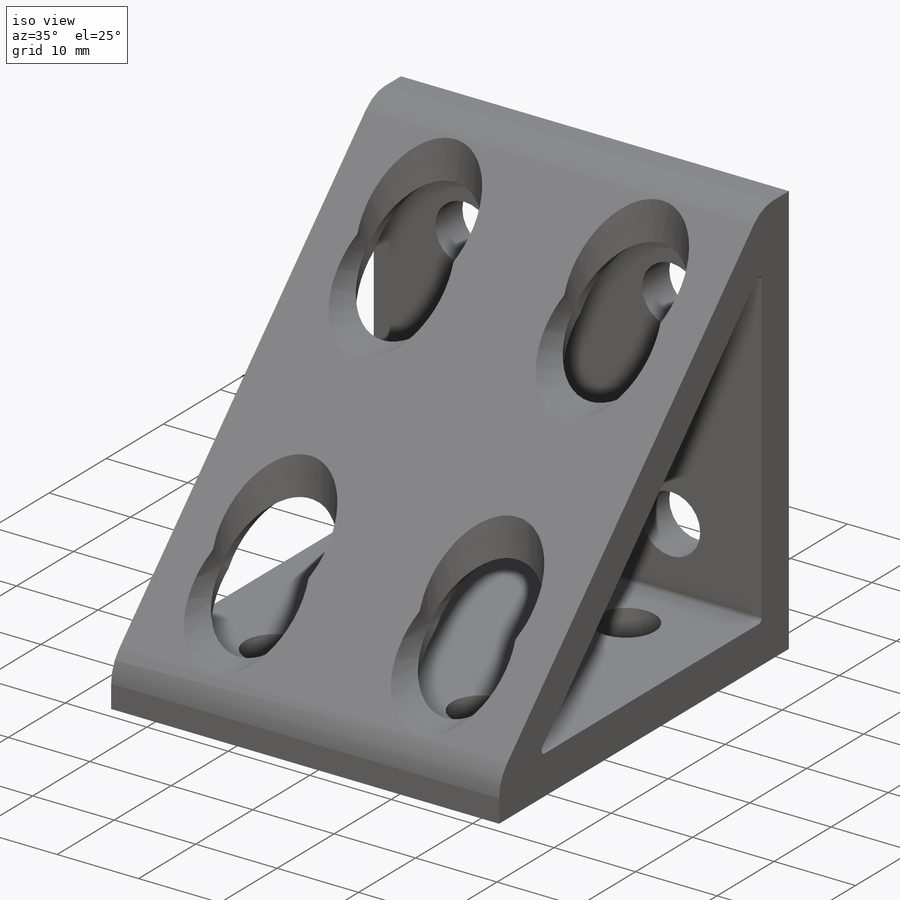
[diagram: iso view]
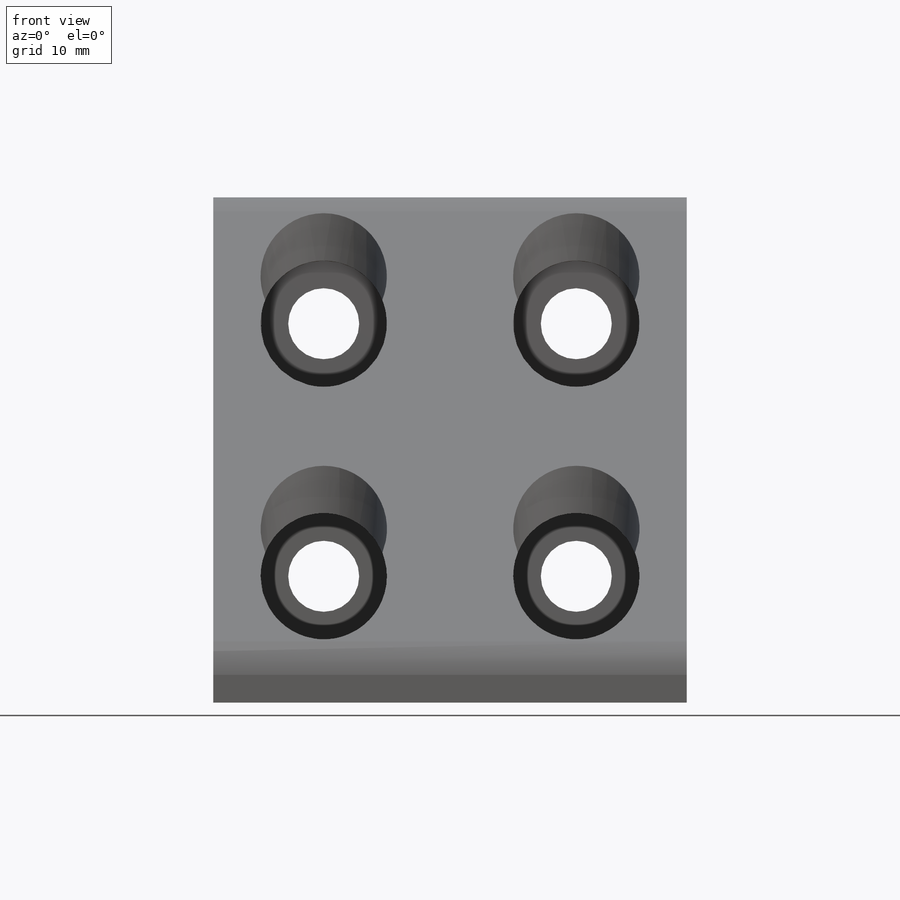
[diagram: front view]
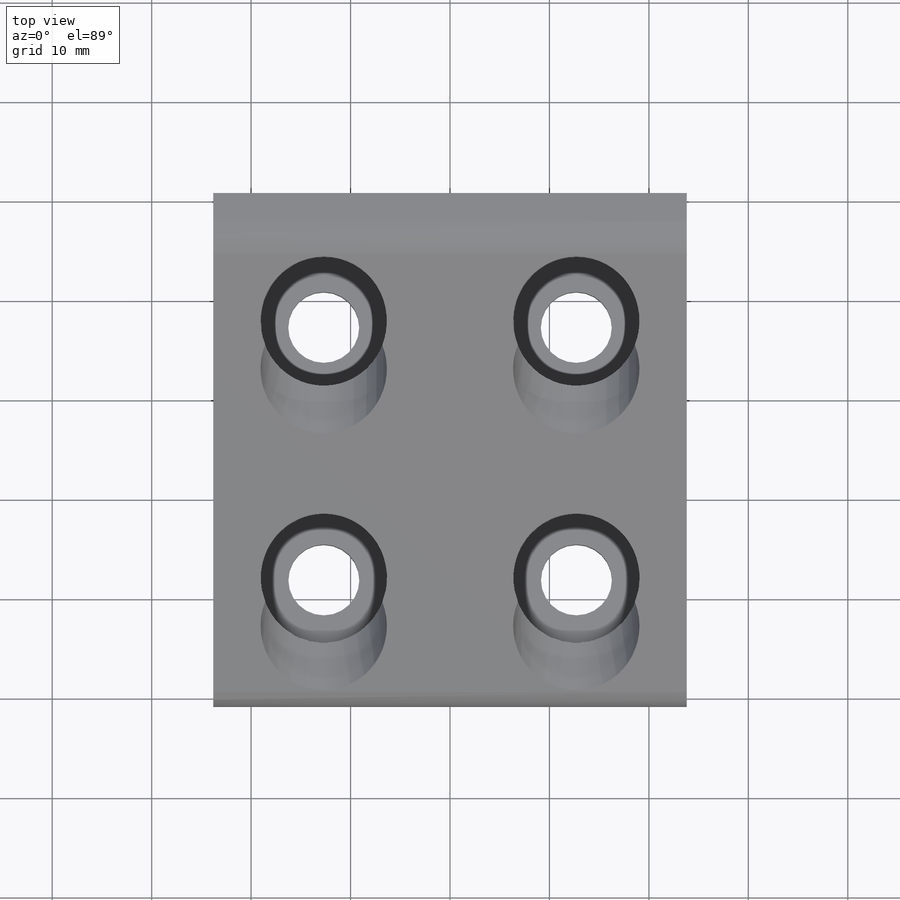
[diagram: top view]
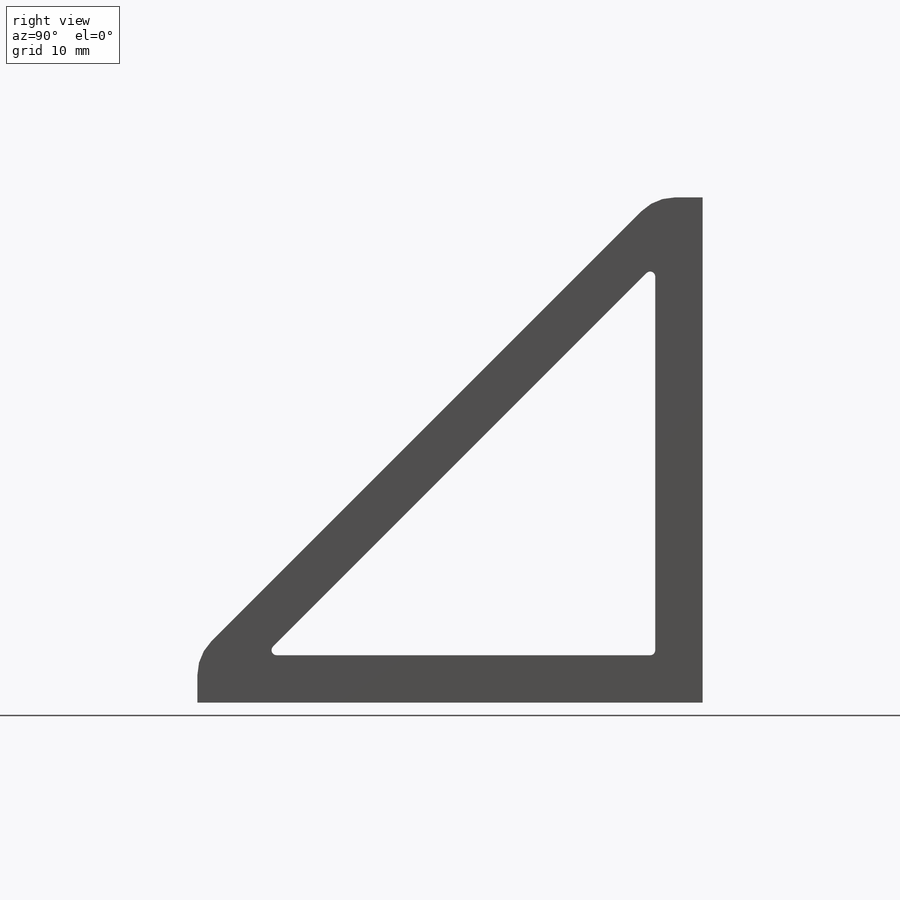
[diagram: right view]
SOLIDWORKS PART (.sldprt)
format: sldprt  version: not decoded by parser v0  size: 364,032 bytes
history: native  units: mm
features: sketch x9, cut_extrude x4, hole x2, material x1, extrude x1, pattern_linear x1 (+14 scaffold rows collapsed; 1 parser-record rows omitted)
feature tree (33):
  scaffold x14  (default folders/planes/origin — collapsed)
  material  "6105-T5 Aluminum"
  sketch  "Sketch1"  dims[D1=50.8mm]
  extrude  "Boss-Extrude1"  Depth=47.625mm
  parser-record x1  (decoder bookkeeping rows leaked as tree rows — omitted from the tree; the rows remain in map.json)
  hole  "K (0.281) Diameter Hole3"  Diameter=7.1374mm Depth=6.604mm
  sketch  "Sketch15"  dims[D1=12.7mm D2=25.4mm D3=11.1125mm D4=11.1125mm]
  sketch  "Sketch14"  dims[hole-wizard template sketch: 46 standard entries collapsed; hole parameters kept: c15.Hole Dia.=7.1374mm c15.Hole Depth=6.604mm c15.D3=~14.816244mm c15.Drill Angle=118.0deg]
  sketch  "Sketch18"  dims[D1=12.7mm]
  cut_extrude  "Cut-Extrude15"  [1 undecoded]
  sketch  "Sketch19"  dims[D1=12.7mm]
  cut_extrude  "Cut-Extrude16"  Depth=27.94mm
  hole  "K (0.281) Diameter Hole4"  Diameter=7.1374mm Depth=6.604mm
  sketch  "Sketch21"  dims[D1=12.7mm D2=25.4mm D3=11.0998mm D4=11.1125mm]
  sketch  "Sketch20"  dims[hole-wizard template sketch: 46 standard entries collapsed; hole parameters kept: c15.Hole Dia.=7.1374mm c15.Hole Depth=6.604mm c15.D3=~14.816244mm c15.Drill Angle=118.0deg]
  sketch  "Sketch22"  dims[D1=12.7mm D2=~2.295275mm]
  cut_extrude  "Cut-Extrude17"  Depth=50.8mm
  sketch  "Sketch23"  dims[D1=12.7mm]
  cut_extrude  "Cut-Extrude18"  Depth=50.8mm
  pattern_linear  "LPattern2"  Count1=2 Count2=1 Spacing1=25.4mm Spacing2=25.4mm
decode coverage: 16 of 17 modeling features carry decoded parameters
note: ~ marks probable driven/reference dimensions
note: 1 parameter value undecoded
note: suppression state not decoded; provenance and decode notes live in map.json
